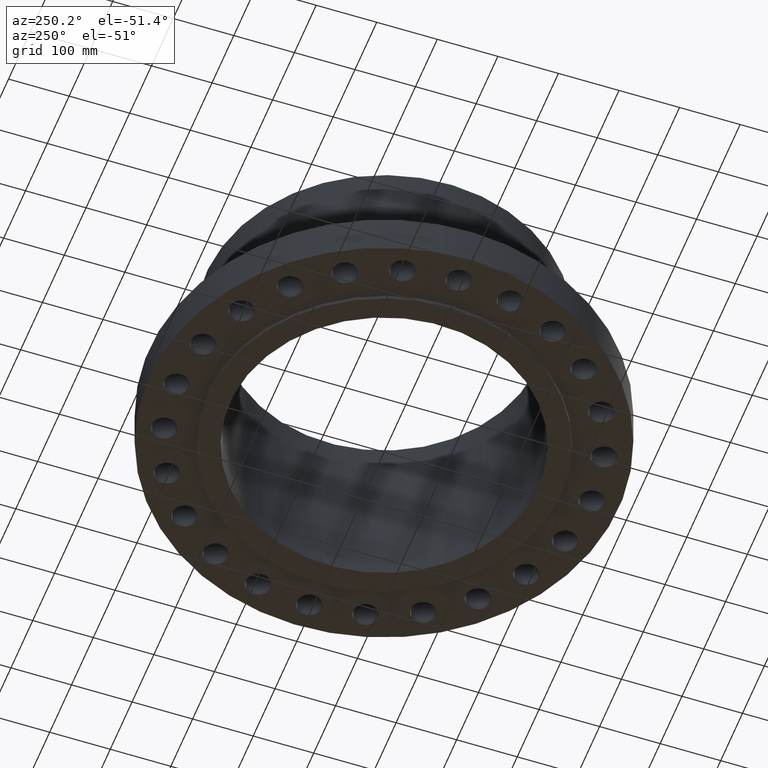
[diagram: clean part render]
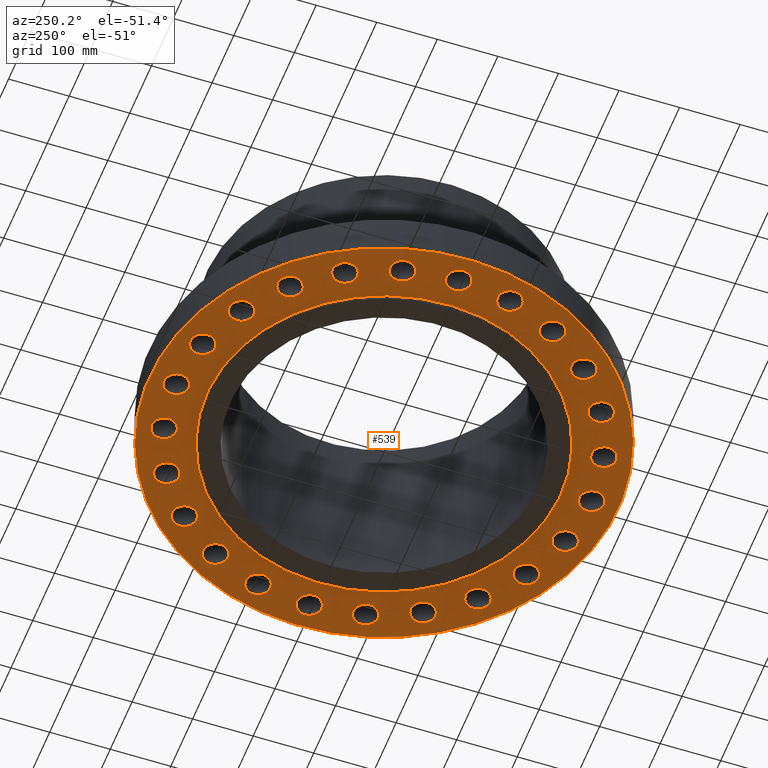
[diagram: same view with one face highlighted and labeled with its STEP entity id]
A machine part, auxiliary view. The second image highlights one B-rep face of the part: STEP entity #539.
In plain terms, the highlighted planar face has unit normal (0, 0, -1).
Its self-contained STEP definition (entity closure, byte-faithful):
#65=AXIS2_PLACEMENT_3D('Circle Axis2P3D',#63,#64,$) ;
#78=AXIS2_PLACEMENT_3D('Plane Axis2P3D',#75,#76,#77) ;
#82=AXIS2_PLACEMENT_3D('Circle Axis2P3D',#80,#81,$) ;
#91=AXIS2_PLACEMENT_3D('Circle Axis2P3D',#89,#90,$) ;
#100=AXIS2_PLACEMENT_3D('Circle Axis2P3D',#98,#99,$) ;
#109=AXIS2_PLACEMENT_3D('Circle Axis2P3D',#107,#108,$) ;
#118=AXIS2_PLACEMENT_3D('Circle Axis2P3D',#116,#117,$) ;
#127=AXIS2_PLACEMENT_3D('Circle Axis2P3D',#125,#126,$) ;
#136=AXIS2_PLACEMENT_3D('Circle Axis2P3D',#134,#135,$) ;
#145=AXIS2_PLACEMENT_3D('Circle Axis2P3D',#143,#144,$) ;
#154=AXIS2_PLACEMENT_3D('Circle Axis2P3D',#152,#153,$) ;
#163=AXIS2_PLACEMENT_3D('Circle Axis2P3D',#161,#162,$) ;
#172=AXIS2_PLACEMENT_3D('Circle Axis2P3D',#170,#171,$) ;
#181=AXIS2_PLACEMENT_3D('Circle Axis2P3D',#179,#180,$) ;
#190=AXIS2_PLACEMENT_3D('Circle Axis2P3D',#188,#189,$) ;
#199=AXIS2_PLACEMENT_3D('Circle Axis2P3D',#197,#198,$) ;
#208=AXIS2_PLACEMENT_3D('Circle Axis2P3D',#206,#207,$) ;
#217=AXIS2_PLACEMENT_3D('Circle Axis2P3D',#215,#216,$) ;
#226=AXIS2_PLACEMENT_3D('Circle Axis2P3D',#224,#225,$) ;
#235=AXIS2_PLACEMENT_3D('Circle Axis2P3D',#233,#234,$) ;
#244=AXIS2_PLACEMENT_3D('Circle Axis2P3D',#242,#243,$) ;
#253=AXIS2_PLACEMENT_3D('Circle Axis2P3D',#251,#252,$) ;
#262=AXIS2_PLACEMENT_3D('Circle Axis2P3D',#260,#261,$) ;
#271=AXIS2_PLACEMENT_3D('Circle Axis2P3D',#269,#270,$) ;
#280=AXIS2_PLACEMENT_3D('Circle Axis2P3D',#278,#279,$) ;
#289=AXIS2_PLACEMENT_3D('Circle Axis2P3D',#287,#288,$) ;
#298=AXIS2_PLACEMENT_3D('Circle Axis2P3D',#296,#297,$) ;
#307=AXIS2_PLACEMENT_3D('Circle Axis2P3D',#305,#306,$) ;
#316=AXIS2_PLACEMENT_3D('Circle Axis2P3D',#314,#315,$) ;
#325=AXIS2_PLACEMENT_3D('Circle Axis2P3D',#323,#324,$) ;
#334=AXIS2_PLACEMENT_3D('Circle Axis2P3D',#332,#333,$) ;
#343=AXIS2_PLACEMENT_3D('Circle Axis2P3D',#341,#342,$) ;
#352=AXIS2_PLACEMENT_3D('Circle Axis2P3D',#350,#351,$) ;
#361=AXIS2_PLACEMENT_3D('Circle Axis2P3D',#359,#360,$) ;
#370=AXIS2_PLACEMENT_3D('Circle Axis2P3D',#368,#369,$) ;
#379=AXIS2_PLACEMENT_3D('Circle Axis2P3D',#377,#378,$) ;
#388=AXIS2_PLACEMENT_3D('Circle Axis2P3D',#386,#387,$) ;
#397=AXIS2_PLACEMENT_3D('Circle Axis2P3D',#395,#396,$) ;
#406=AXIS2_PLACEMENT_3D('Circle Axis2P3D',#404,#405,$) ;
#415=AXIS2_PLACEMENT_3D('Circle Axis2P3D',#413,#414,$) ;
#424=AXIS2_PLACEMENT_3D('Circle Axis2P3D',#422,#423,$) ;
#433=AXIS2_PLACEMENT_3D('Circle Axis2P3D',#431,#432,$) ;
#442=AXIS2_PLACEMENT_3D('Circle Axis2P3D',#440,#441,$) ;
#451=AXIS2_PLACEMENT_3D('Circle Axis2P3D',#449,#450,$) ;
#460=AXIS2_PLACEMENT_3D('Circle Axis2P3D',#458,#459,$) ;
#469=AXIS2_PLACEMENT_3D('Circle Axis2P3D',#467,#468,$) ;
#478=AXIS2_PLACEMENT_3D('Circle Axis2P3D',#476,#477,$) ;
#487=AXIS2_PLACEMENT_3D('Circle Axis2P3D',#485,#486,$) ;
#496=AXIS2_PLACEMENT_3D('Circle Axis2P3D',#494,#495,$) ;
#505=AXIS2_PLACEMENT_3D('Circle Axis2P3D',#503,#504,$) ;
#514=AXIS2_PLACEMENT_3D('Circle Axis2P3D',#512,#513,$) ;
#523=AXIS2_PLACEMENT_3D('Circle Axis2P3D',#521,#522,$) ;
#532=AXIS2_PLACEMENT_3D('Circle Axis2P3D',#530,#531,$) ;
#46=CARTESIAN_POINT('Vertex',(12.7891581249,-0.388334686271,2.2401153548E-016)) ;
#60=CARTESIAN_POINT('Vertex',(14.2108418752,0.388334686271,2.2401153548E-016)) ;
#63=CARTESIAN_POINT('Axis2P3D Location',(13.5000000001,0.,0.)) ;
#75=CARTESIAN_POINT('Axis2P3D Location',(0.,11.5,0.)) ;
#80=CARTESIAN_POINT('Axis2P3D Location',(0.,0.,0.)) ;
#84=CARTESIAN_POINT('Vertex',(-7.31123946374,-13.3831340689,2.23792987641E-015)) ;
#86=CARTESIAN_POINT('Vertex',(7.31123946374,13.3831340689,2.23792987641E-015)) ;
#89=CARTESIAN_POINT('Axis2P3D Location',(0.,0.,0.)) ;
#98=CARTESIAN_POINT('Axis2P3D Location',(13.5000000001,0.,0.)) ;
#107=CARTESIAN_POINT('Axis2P3D Location',(0.,0.,0.)) ;
#111=CARTESIAN_POINT('Vertex',(5.51339369397,10.0921994618,0.)) ;
#113=CARTESIAN_POINT('Vertex',(-5.51339369397,-10.0921994618,0.)) ;
#116=CARTESIAN_POINT('Axis2P3D Location',(0.,0.,0.)) ;
#125=CARTESIAN_POINT('Axis2P3D Location',(13.039998655,-3.4940571089,0.)) ;
#129=CARTESIAN_POINT('Vertex',(13.8271275932,-3.30293402153,0.)) ;
#131=CARTESIAN_POINT('Vertex',(12.2528697167,-3.68518019627,0.)) ;
#134=CARTESIAN_POINT('Axis2P3D Location',(13.039998655,-3.4940571089,0.)) ;
#143=CARTESIAN_POINT('Axis2P3D Location',(11.6913429511,-6.75000000003,0.)) ;
#147=CARTESIAN_POINT('Vertex',(12.5011174162,-6.76911323411,0.)) ;
#149=CARTESIAN_POINT('Vertex',(10.8815684861,-6.73088676594,0.)) ;
#152=CARTESIAN_POINT('Axis2P3D Location',(11.6913429511,-6.75000000003,0.)) ;
#161=CARTESIAN_POINT('Axis2P3D Location',(9.54594154606,-9.54594154606,0.)) ;
#165=CARTESIAN_POINT('Vertex',(10.3231767463,-9.77398856628,0.)) ;
#167=CARTESIAN_POINT('Vertex',(8.76870634577,-9.31789452583,0.)) ;
#170=CARTESIAN_POINT('Axis2P3D Location',(9.54594154606,-9.54594154606,0.)) ;
#179=CARTESIAN_POINT('Axis2P3D Location',(6.75000000003,-11.6913429511,0.)) ;
#183=CARTESIAN_POINT('Vertex',(7.44172864108,-12.1127827299,0.)) ;
#185=CARTESIAN_POINT('Vertex',(6.05827135898,-11.2699031723,0.)) ;
#188=CARTESIAN_POINT('Axis2P3D Location',(6.75000000003,-11.6913429511,0.)) ;
#197=CARTESIAN_POINT('Axis2P3D Location',(3.4940571089,-13.039998655,0.)) ;
#201=CARTESIAN_POINT('Vertex',(4.05313902695,-13.6261107679,0.)) ;
#203=CARTESIAN_POINT('Vertex',(2.93497519084,-12.453886542,0.)) ;
#206=CARTESIAN_POINT('Axis2P3D Location',(3.4940571089,-13.039998655,0.)) ;
#215=CARTESIAN_POINT('Axis2P3D Location',(-7.69288395016E-016,-13.5000000001,0.)) ;
#219=CARTESIAN_POINT('Vertex',(0.388334686271,-14.2108418752,0.)) ;
#221=CARTESIAN_POINT('Vertex',(-0.388334686271,-12.7891581249,0.)) ;
#224=CARTESIAN_POINT('Axis2P3D Location',(-2.65754172824E-015,-13.5000000001,0.)) ;
#233=CARTESIAN_POINT('Axis2P3D Location',(-3.4940571089,-13.039998655,0.)) ;
#237=CARTESIAN_POINT('Vertex',(-3.30293402153,-13.8271275932,0.)) ;
#239=CARTESIAN_POINT('Vertex',(-3.68518019627,-12.2528697167,0.)) ;
#242=CARTESIAN_POINT('Axis2P3D Location',(-3.4940571089,-13.039998655,0.)) ;
#251=CARTESIAN_POINT('Axis2P3D Location',(-6.75000000003,-11.6913429511,0.)) ;
#255=CARTESIAN_POINT('Vertex',(-6.76911323411,-12.5011174162,0.)) ;
#257=CARTESIAN_POINT('Vertex',(-6.73088676594,-10.8815684861,0.)) ;
#260=CARTESIAN_POINT('Axis2P3D Location',(-6.75000000003,-11.6913429511,0.)) ;
#269=CARTESIAN_POINT('Axis2P3D Location',(-9.54594154606,-9.54594154606,0.)) ;
#273=CARTESIAN_POINT('Vertex',(-9.77398856628,-10.3231767463,0.)) ;
#275=CARTESIAN_POINT('Vertex',(-9.31789452583,-8.76870634577,0.)) ;
#278=CARTESIAN_POINT('Axis2P3D Location',(-9.54594154606,-9.54594154606,0.)) ;
#287=CARTESIAN_POINT('Axis2P3D Location',(-11.6913429511,-6.75000000003,0.)) ;
#291=CARTESIAN_POINT('Vertex',(-12.1127827299,-7.44172864108,0.)) ;
#293=CARTESIAN_POINT('Vertex',(-11.2699031723,-6.05827135898,0.)) ;
#296=CARTESIAN_POINT('Axis2P3D Location',(-11.6913429511,-6.75000000003,0.)) ;
#305=CARTESIAN_POINT('Axis2P3D Location',(-13.039998655,-3.4940571089,0.)) ;
#309=CARTESIAN_POINT('Vertex',(-13.6261107679,-4.05313902695,0.)) ;
#311=CARTESIAN_POINT('Vertex',(-12.453886542,-2.93497519084,0.)) ;
#314=CARTESIAN_POINT('Axis2P3D Location',(-13.039998655,-3.4940571089,0.)) ;
#323=CARTESIAN_POINT('Axis2P3D Location',(-13.5000000001,0.,0.)) ;
#327=CARTESIAN_POINT('Vertex',(-14.2108418752,-0.388334686271,0.)) ;
#329=CARTESIAN_POINT('Vertex',(-12.7891581249,0.388334686271,0.)) ;
#332=CARTESIAN_POINT('Axis2P3D Location',(-13.5000000001,0.,0.)) ;
#341=CARTESIAN_POINT('Axis2P3D Location',(-13.039998655,3.4940571089,0.)) ;
#345=CARTESIAN_POINT('Vertex',(-13.8271275932,3.30293402153,0.)) ;
#347=CARTESIAN_POINT('Vertex',(-12.2528697167,3.68518019627,0.)) ;
#350=CARTESIAN_POINT('Axis2P3D Location',(-13.039998655,3.4940571089,0.)) ;
#359=CARTESIAN_POINT('Axis2P3D Location',(-11.6913429511,6.75000000003,0.)) ;
#363=CARTESIAN_POINT('Vertex',(-12.5011174162,6.76911323411,0.)) ;
#365=CARTESIAN_POINT('Vertex',(-10.8815684861,6.73088676594,0.)) ;
#368=CARTESIAN_POINT('Axis2P3D Location',(-11.6913429511,6.75000000003,0.)) ;
#377=CARTESIAN_POINT('Axis2P3D Location',(-9.54594154606,9.54594154606,0.)) ;
#381=CARTESIAN_POINT('Vertex',(-10.3231767463,9.77398856628,0.)) ;
#383=CARTESIAN_POINT('Vertex',(-8.76870634577,9.31789452583,0.)) ;
#386=CARTESIAN_POINT('Axis2P3D Location',(-9.54594154606,9.54594154606,0.)) ;
#395=CARTESIAN_POINT('Axis2P3D Location',(-6.75000000003,11.6913429511,0.)) ;
#399=CARTESIAN_POINT('Vertex',(-7.44172864108,12.1127827299,0.)) ;
#401=CARTESIAN_POINT('Vertex',(-6.05827135898,11.2699031723,0.)) ;
#404=CARTESIAN_POINT('Axis2P3D Location',(-6.75000000003,11.6913429511,0.)) ;
#413=CARTESIAN_POINT('Axis2P3D Location',(-3.4940571089,13.039998655,0.)) ;
#417=CARTESIAN_POINT('Vertex',(-4.05313902695,13.6261107679,0.)) ;
#419=CARTESIAN_POINT('Vertex',(-2.93497519084,12.453886542,0.)) ;
#422=CARTESIAN_POINT('Axis2P3D Location',(-3.4940571089,13.039998655,0.)) ;
#431=CARTESIAN_POINT('Axis2P3D Location',(-3.1470888887E-015,13.5000000001,0.)) ;
#435=CARTESIAN_POINT('Vertex',(-0.388334686271,14.2108418752,0.)) ;
#437=CARTESIAN_POINT('Vertex',(0.388334686271,12.7891581249,0.)) ;
#440=CARTESIAN_POINT('Axis2P3D Location',(-1.88825333322E-015,13.5000000001,0.)) ;
#449=CARTESIAN_POINT('Axis2P3D Location',(3.4940571089,13.039998655,0.)) ;
#453=CARTESIAN_POINT('Vertex',(3.30293402153,13.8271275932,0.)) ;
#455=CARTESIAN_POINT('Vertex',(3.68518019627,12.2528697167,0.)) ;
#458=CARTESIAN_POINT('Axis2P3D Location',(3.4940571089,13.039998655,0.)) ;
#467=CARTESIAN_POINT('Axis2P3D Location',(6.75000000003,11.6913429511,0.)) ;
#471=CARTESIAN_POINT('Vertex',(6.76911323411,12.5011174162,0.)) ;
#473=CARTESIAN_POINT('Vertex',(6.73088676594,10.8815684861,0.)) ;
#476=CARTESIAN_POINT('Axis2P3D Location',(6.75000000003,11.6913429511,0.)) ;
#485=CARTESIAN_POINT('Axis2P3D Location',(9.54594154606,9.54594154606,0.)) ;
#489=CARTESIAN_POINT('Vertex',(9.77398856628,10.3231767463,0.)) ;
#491=CARTESIAN_POINT('Vertex',(9.31789452583,8.76870634577,0.)) ;
#494=CARTESIAN_POINT('Axis2P3D Location',(9.54594154606,9.54594154606,0.)) ;
#503=CARTESIAN_POINT('Axis2P3D Location',(11.6913429511,6.75000000003,0.)) ;
#507=CARTESIAN_POINT('Vertex',(12.1127827299,7.44172864108,0.)) ;
#509=CARTESIAN_POINT('Vertex',(11.2699031723,6.05827135898,0.)) ;
#512=CARTESIAN_POINT('Axis2P3D Location',(11.6913429511,6.75000000003,0.)) ;
#521=CARTESIAN_POINT('Axis2P3D Location',(13.039998655,3.4940571089,0.)) ;
#525=CARTESIAN_POINT('Vertex',(13.6261107679,4.05313902695,0.)) ;
#527=CARTESIAN_POINT('Vertex',(12.453886542,2.93497519084,0.)) ;
#530=CARTESIAN_POINT('Axis2P3D Location',(13.039998655,3.4940571089,0.)) ;
#64=DIRECTION('Axis2P3D Direction',(0.,-0.,0.0393700787402)) ;
#76=DIRECTION('Axis2P3D Direction',(0.,0.,-0.0393700787402)) ;
#77=DIRECTION('Axis2P3D XDirection',(0.0393700787402,0.,0.)) ;
#81=DIRECTION('Axis2P3D Direction',(0.,0.,-0.0393700787402)) ;
#90=DIRECTION('Axis2P3D Direction',(0.,0.,-0.0393700787402)) ;
#99=DIRECTION('Axis2P3D Direction',(0.,0.,-0.0393700787402)) ;
#108=DIRECTION('Axis2P3D Direction',(0.,0.,-0.0393700787402)) ;
#117=DIRECTION('Axis2P3D Direction',(0.,0.,-0.0393700787402)) ;
#126=DIRECTION('Axis2P3D Direction',(0.,0.,-0.0393700787402)) ;
#135=DIRECTION('Axis2P3D Direction',(0.,0.,-0.0393700787402)) ;
#144=DIRECTION('Axis2P3D Direction',(0.,0.,-0.0393700787402)) ;
#153=DIRECTION('Axis2P3D Direction',(0.,0.,-0.0393700787402)) ;
#162=DIRECTION('Axis2P3D Direction',(0.,0.,-0.0393700787402)) ;
#171=DIRECTION('Axis2P3D Direction',(0.,0.,-0.0393700787402)) ;
#180=DIRECTION('Axis2P3D Direction',(0.,0.,-0.0393700787402)) ;
#189=DIRECTION('Axis2P3D Direction',(0.,0.,-0.0393700787402)) ;
#198=DIRECTION('Axis2P3D Direction',(0.,0.,-0.0393700787402)) ;
#207=DIRECTION('Axis2P3D Direction',(0.,0.,-0.0393700787402)) ;
#216=DIRECTION('Axis2P3D Direction',(0.,0.,-0.0393700787402)) ;
#225=DIRECTION('Axis2P3D Direction',(0.,0.,-0.0393700787402)) ;
#234=DIRECTION('Axis2P3D Direction',(0.,0.,-0.0393700787402)) ;
#243=DIRECTION('Axis2P3D Direction',(0.,0.,-0.0393700787402)) ;
#252=DIRECTION('Axis2P3D Direction',(0.,0.,-0.0393700787402)) ;
#261=DIRECTION('Axis2P3D Direction',(0.,0.,-0.0393700787402)) ;
#270=DIRECTION('Axis2P3D Direction',(0.,0.,-0.0393700787402)) ;
#279=DIRECTION('Axis2P3D Direction',(0.,0.,-0.0393700787402)) ;
#288=DIRECTION('Axis2P3D Direction',(0.,0.,-0.0393700787402)) ;
#297=DIRECTION('Axis2P3D Direction',(0.,0.,-0.0393700787402)) ;
#306=DIRECTION('Axis2P3D Direction',(0.,0.,-0.0393700787402)) ;
#315=DIRECTION('Axis2P3D Direction',(0.,0.,-0.0393700787402)) ;
#324=DIRECTION('Axis2P3D Direction',(0.,0.,-0.0393700787402)) ;
#333=DIRECTION('Axis2P3D Direction',(0.,0.,-0.0393700787402)) ;
#342=DIRECTION('Axis2P3D Direction',(0.,0.,-0.0393700787402)) ;
#351=DIRECTION('Axis2P3D Direction',(0.,0.,-0.0393700787402)) ;
#360=DIRECTION('Axis2P3D Direction',(0.,0.,-0.0393700787402)) ;
#369=DIRECTION('Axis2P3D Direction',(0.,0.,-0.0393700787402)) ;
#378=DIRECTION('Axis2P3D Direction',(0.,0.,-0.0393700787402)) ;
#387=DIRECTION('Axis2P3D Direction',(0.,0.,-0.0393700787402)) ;
#396=DIRECTION('Axis2P3D Direction',(0.,0.,-0.0393700787402)) ;
#405=DIRECTION('Axis2P3D Direction',(0.,0.,-0.0393700787402)) ;
#414=DIRECTION('Axis2P3D Direction',(0.,0.,-0.0393700787402)) ;
#423=DIRECTION('Axis2P3D Direction',(0.,0.,-0.0393700787402)) ;
#432=DIRECTION('Axis2P3D Direction',(0.,0.,-0.0393700787402)) ;
#441=DIRECTION('Axis2P3D Direction',(0.,0.,-0.0393700787402)) ;
#450=DIRECTION('Axis2P3D Direction',(0.,0.,-0.0393700787402)) ;
#459=DIRECTION('Axis2P3D Direction',(0.,0.,-0.0393700787402)) ;
#468=DIRECTION('Axis2P3D Direction',(0.,0.,-0.0393700787402)) ;
#477=DIRECTION('Axis2P3D Direction',(0.,0.,-0.0393700787402)) ;
#486=DIRECTION('Axis2P3D Direction',(0.,0.,-0.0393700787402)) ;
#495=DIRECTION('Axis2P3D Direction',(0.,0.,-0.0393700787402)) ;
#504=DIRECTION('Axis2P3D Direction',(0.,0.,-0.0393700787402)) ;
#513=DIRECTION('Axis2P3D Direction',(0.,0.,-0.0393700787402)) ;
#522=DIRECTION('Axis2P3D Direction',(0.,0.,-0.0393700787402)) ;
#531=DIRECTION('Axis2P3D Direction',(0.,0.,-0.0393700787402)) ;
#95=ORIENTED_EDGE('',*,*,#88,.T.) ;
#96=ORIENTED_EDGE('',*,*,#93,.T.) ;
#104=ORIENTED_EDGE('',*,*,#102,.F.) ;
#105=ORIENTED_EDGE('',*,*,#67,.F.) ;
#122=ORIENTED_EDGE('',*,*,#115,.F.) ;
#123=ORIENTED_EDGE('',*,*,#120,.F.) ;
#140=ORIENTED_EDGE('',*,*,#133,.F.) ;
#141=ORIENTED_EDGE('',*,*,#138,.F.) ;
#158=ORIENTED_EDGE('',*,*,#151,.F.) ;
#159=ORIENTED_EDGE('',*,*,#156,.F.) ;
#176=ORIENTED_EDGE('',*,*,#169,.F.) ;
#177=ORIENTED_EDGE('',*,*,#174,.F.) ;
#194=ORIENTED_EDGE('',*,*,#187,.F.) ;
#195=ORIENTED_EDGE('',*,*,#192,.F.) ;
#212=ORIENTED_EDGE('',*,*,#205,.F.) ;
#213=ORIENTED_EDGE('',*,*,#210,.F.) ;
#230=ORIENTED_EDGE('',*,*,#223,.F.) ;
#231=ORIENTED_EDGE('',*,*,#228,.F.) ;
#248=ORIENTED_EDGE('',*,*,#241,.F.) ;
#249=ORIENTED_EDGE('',*,*,#246,.F.) ;
#266=ORIENTED_EDGE('',*,*,#259,.F.) ;
#267=ORIENTED_EDGE('',*,*,#264,.F.) ;
#284=ORIENTED_EDGE('',*,*,#277,.F.) ;
#285=ORIENTED_EDGE('',*,*,#282,.F.) ;
#302=ORIENTED_EDGE('',*,*,#295,.F.) ;
#303=ORIENTED_EDGE('',*,*,#300,.F.) ;
#320=ORIENTED_EDGE('',*,*,#313,.F.) ;
#321=ORIENTED_EDGE('',*,*,#318,.F.) ;
#338=ORIENTED_EDGE('',*,*,#331,.F.) ;
#339=ORIENTED_EDGE('',*,*,#336,.F.) ;
#356=ORIENTED_EDGE('',*,*,#349,.F.) ;
#357=ORIENTED_EDGE('',*,*,#354,.F.) ;
#374=ORIENTED_EDGE('',*,*,#367,.F.) ;
#375=ORIENTED_EDGE('',*,*,#372,.F.) ;
#392=ORIENTED_EDGE('',*,*,#385,.F.) ;
#393=ORIENTED_EDGE('',*,*,#390,.F.) ;
#410=ORIENTED_EDGE('',*,*,#403,.F.) ;
#411=ORIENTED_EDGE('',*,*,#408,.F.) ;
#428=ORIENTED_EDGE('',*,*,#421,.F.) ;
#429=ORIENTED_EDGE('',*,*,#426,.F.) ;
#446=ORIENTED_EDGE('',*,*,#439,.F.) ;
#447=ORIENTED_EDGE('',*,*,#444,.F.) ;
#464=ORIENTED_EDGE('',*,*,#457,.F.) ;
#465=ORIENTED_EDGE('',*,*,#462,.F.) ;
#482=ORIENTED_EDGE('',*,*,#475,.F.) ;
#483=ORIENTED_EDGE('',*,*,#480,.F.) ;
#500=ORIENTED_EDGE('',*,*,#493,.F.) ;
#501=ORIENTED_EDGE('',*,*,#498,.F.) ;
#518=ORIENTED_EDGE('',*,*,#511,.F.) ;
#519=ORIENTED_EDGE('',*,*,#516,.F.) ;
#536=ORIENTED_EDGE('',*,*,#529,.F.) ;
#537=ORIENTED_EDGE('',*,*,#534,.F.) ;
#106=FACE_BOUND('',#103,.T.) ;
#124=FACE_BOUND('',#121,.T.) ;
#142=FACE_BOUND('',#139,.T.) ;
#160=FACE_BOUND('',#157,.T.) ;
#178=FACE_BOUND('',#175,.T.) ;
#196=FACE_BOUND('',#193,.T.) ;
#214=FACE_BOUND('',#211,.T.) ;
#232=FACE_BOUND('',#229,.T.) ;
#250=FACE_BOUND('',#247,.T.) ;
#268=FACE_BOUND('',#265,.T.) ;
#286=FACE_BOUND('',#283,.T.) ;
#304=FACE_BOUND('',#301,.T.) ;
#322=FACE_BOUND('',#319,.T.) ;
#340=FACE_BOUND('',#337,.T.) ;
#358=FACE_BOUND('',#355,.T.) ;
#376=FACE_BOUND('',#373,.T.) ;
#394=FACE_BOUND('',#391,.T.) ;
#412=FACE_BOUND('',#409,.T.) ;
#430=FACE_BOUND('',#427,.T.) ;
#448=FACE_BOUND('',#445,.T.) ;
#466=FACE_BOUND('',#463,.T.) ;
#484=FACE_BOUND('',#481,.T.) ;
#502=FACE_BOUND('',#499,.T.) ;
#520=FACE_BOUND('',#517,.T.) ;
#538=FACE_BOUND('',#535,.T.) ;
#539=ADVANCED_FACE('PartBody',(#97,#106,#124,#142,#160,#178,#196,#214,#232,#250,#268,#286,#304,#322,#340,#358,#376,#394,#412,#430,#448,#466,#484,#502,#520,#538),#79,.T.) ;
#66=CIRCLE('generated circle',#65,0.810000000003) ;
#83=CIRCLE('generated circle',#82,15.2500000001) ;
#92=CIRCLE('generated circle',#91,15.2500000001) ;
#101=CIRCLE('generated circle',#100,0.810000000003) ;
#110=CIRCLE('generated circle',#109,11.5) ;
#119=CIRCLE('generated circle',#118,11.5) ;
#128=CIRCLE('generated circle',#127,0.810000000003) ;
#137=CIRCLE('generated circle',#136,0.810000000003) ;
#146=CIRCLE('generated circle',#145,0.810000000003) ;
#155=CIRCLE('generated circle',#154,0.810000000003) ;
#164=CIRCLE('generated circle',#163,0.810000000003) ;
#173=CIRCLE('generated circle',#172,0.810000000003) ;
#182=CIRCLE('generated circle',#181,0.810000000003) ;
#191=CIRCLE('generated circle',#190,0.810000000003) ;
#200=CIRCLE('generated circle',#199,0.810000000003) ;
#209=CIRCLE('generated circle',#208,0.810000000003) ;
#218=CIRCLE('generated circle',#217,0.810000000003) ;
#227=CIRCLE('generated circle',#226,0.810000000003) ;
#236=CIRCLE('generated circle',#235,0.810000000003) ;
#245=CIRCLE('generated circle',#244,0.810000000003) ;
#254=CIRCLE('generated circle',#253,0.810000000003) ;
#263=CIRCLE('generated circle',#262,0.810000000003) ;
#272=CIRCLE('generated circle',#271,0.810000000003) ;
#281=CIRCLE('generated circle',#280,0.810000000003) ;
#290=CIRCLE('generated circle',#289,0.810000000003) ;
#299=CIRCLE('generated circle',#298,0.810000000003) ;
#308=CIRCLE('generated circle',#307,0.810000000003) ;
#317=CIRCLE('generated circle',#316,0.810000000003) ;
#326=CIRCLE('generated circle',#325,0.810000000003) ;
#335=CIRCLE('generated circle',#334,0.810000000003) ;
#344=CIRCLE('generated circle',#343,0.810000000003) ;
#353=CIRCLE('generated circle',#352,0.810000000003) ;
#362=CIRCLE('generated circle',#361,0.810000000003) ;
#371=CIRCLE('generated circle',#370,0.810000000003) ;
#380=CIRCLE('generated circle',#379,0.810000000003) ;
#389=CIRCLE('generated circle',#388,0.810000000003) ;
#398=CIRCLE('generated circle',#397,0.810000000003) ;
#407=CIRCLE('generated circle',#406,0.810000000003) ;
#416=CIRCLE('generated circle',#415,0.810000000003) ;
#425=CIRCLE('generated circle',#424,0.810000000003) ;
#434=CIRCLE('generated circle',#433,0.810000000003) ;
#443=CIRCLE('generated circle',#442,0.810000000003) ;
#452=CIRCLE('generated circle',#451,0.810000000003) ;
#461=CIRCLE('generated circle',#460,0.810000000003) ;
#470=CIRCLE('generated circle',#469,0.810000000003) ;
#479=CIRCLE('generated circle',#478,0.810000000003) ;
#488=CIRCLE('generated circle',#487,0.810000000003) ;
#497=CIRCLE('generated circle',#496,0.810000000003) ;
#506=CIRCLE('generated circle',#505,0.810000000003) ;
#515=CIRCLE('generated circle',#514,0.810000000003) ;
#524=CIRCLE('generated circle',#523,0.810000000003) ;
#533=CIRCLE('generated circle',#532,0.810000000003) ;
#67=EDGE_CURVE('',#61,#47,#66,.F.) ;
#88=EDGE_CURVE('',#85,#87,#83,.T.) ;
#93=EDGE_CURVE('',#87,#85,#92,.T.) ;
#102=EDGE_CURVE('',#47,#61,#101,.T.) ;
#115=EDGE_CURVE('',#112,#114,#110,.T.) ;
#120=EDGE_CURVE('',#114,#112,#119,.T.) ;
#133=EDGE_CURVE('',#130,#132,#128,.T.) ;
#138=EDGE_CURVE('',#132,#130,#137,.T.) ;
#151=EDGE_CURVE('',#148,#150,#146,.T.) ;
#156=EDGE_CURVE('',#150,#148,#155,.T.) ;
#169=EDGE_CURVE('',#166,#168,#164,.T.) ;
#174=EDGE_CURVE('',#168,#166,#173,.T.) ;
#187=EDGE_CURVE('',#184,#186,#182,.T.) ;
#192=EDGE_CURVE('',#186,#184,#191,.T.) ;
#205=EDGE_CURVE('',#202,#204,#200,.T.) ;
#210=EDGE_CURVE('',#204,#202,#209,.T.) ;
#223=EDGE_CURVE('',#220,#222,#218,.T.) ;
#228=EDGE_CURVE('',#222,#220,#227,.T.) ;
#241=EDGE_CURVE('',#238,#240,#236,.T.) ;
#246=EDGE_CURVE('',#240,#238,#245,.T.) ;
#259=EDGE_CURVE('',#256,#258,#254,.T.) ;
#264=EDGE_CURVE('',#258,#256,#263,.T.) ;
#277=EDGE_CURVE('',#274,#276,#272,.T.) ;
#282=EDGE_CURVE('',#276,#274,#281,.T.) ;
#295=EDGE_CURVE('',#292,#294,#290,.T.) ;
#300=EDGE_CURVE('',#294,#292,#299,.T.) ;
#313=EDGE_CURVE('',#310,#312,#308,.T.) ;
#318=EDGE_CURVE('',#312,#310,#317,.T.) ;
#331=EDGE_CURVE('',#328,#330,#326,.T.) ;
#336=EDGE_CURVE('',#330,#328,#335,.T.) ;
#349=EDGE_CURVE('',#346,#348,#344,.T.) ;
#354=EDGE_CURVE('',#348,#346,#353,.T.) ;
#367=EDGE_CURVE('',#364,#366,#362,.T.) ;
#372=EDGE_CURVE('',#366,#364,#371,.T.) ;
#385=EDGE_CURVE('',#382,#384,#380,.T.) ;
#390=EDGE_CURVE('',#384,#382,#389,.T.) ;
#403=EDGE_CURVE('',#400,#402,#398,.T.) ;
#408=EDGE_CURVE('',#402,#400,#407,.T.) ;
#421=EDGE_CURVE('',#418,#420,#416,.T.) ;
#426=EDGE_CURVE('',#420,#418,#425,.T.) ;
#439=EDGE_CURVE('',#436,#438,#434,.T.) ;
#444=EDGE_CURVE('',#438,#436,#443,.T.) ;
#457=EDGE_CURVE('',#454,#456,#452,.T.) ;
#462=EDGE_CURVE('',#456,#454,#461,.T.) ;
#475=EDGE_CURVE('',#472,#474,#470,.T.) ;
#480=EDGE_CURVE('',#474,#472,#479,.T.) ;
#493=EDGE_CURVE('',#490,#492,#488,.T.) ;
#498=EDGE_CURVE('',#492,#490,#497,.T.) ;
#511=EDGE_CURVE('',#508,#510,#506,.T.) ;
#516=EDGE_CURVE('',#510,#508,#515,.T.) ;
#529=EDGE_CURVE('',#526,#528,#524,.T.) ;
#534=EDGE_CURVE('',#528,#526,#533,.T.) ;
#94=EDGE_LOOP('',(#95,#96)) ;
#103=EDGE_LOOP('',(#104,#105)) ;
#121=EDGE_LOOP('',(#122,#123)) ;
#139=EDGE_LOOP('',(#140,#141)) ;
#157=EDGE_LOOP('',(#158,#159)) ;
#175=EDGE_LOOP('',(#176,#177)) ;
#193=EDGE_LOOP('',(#194,#195)) ;
#211=EDGE_LOOP('',(#212,#213)) ;
#229=EDGE_LOOP('',(#230,#231)) ;
#247=EDGE_LOOP('',(#248,#249)) ;
#265=EDGE_LOOP('',(#266,#267)) ;
#283=EDGE_LOOP('',(#284,#285)) ;
#301=EDGE_LOOP('',(#302,#303)) ;
#319=EDGE_LOOP('',(#320,#321)) ;
#337=EDGE_LOOP('',(#338,#339)) ;
#355=EDGE_LOOP('',(#356,#357)) ;
#373=EDGE_LOOP('',(#374,#375)) ;
#391=EDGE_LOOP('',(#392,#393)) ;
#409=EDGE_LOOP('',(#410,#411)) ;
#427=EDGE_LOOP('',(#428,#429)) ;
#445=EDGE_LOOP('',(#446,#447)) ;
#463=EDGE_LOOP('',(#464,#465)) ;
#481=EDGE_LOOP('',(#482,#483)) ;
#499=EDGE_LOOP('',(#500,#501)) ;
#517=EDGE_LOOP('',(#518,#519)) ;
#535=EDGE_LOOP('',(#536,#537)) ;
#97=FACE_OUTER_BOUND('',#94,.T.) ;
#79=PLANE('',#78) ;
#47=VERTEX_POINT('',#46) ;
#61=VERTEX_POINT('',#60) ;
#85=VERTEX_POINT('',#84) ;
#87=VERTEX_POINT('',#86) ;
#112=VERTEX_POINT('',#111) ;
#114=VERTEX_POINT('',#113) ;
#130=VERTEX_POINT('',#129) ;
#132=VERTEX_POINT('',#131) ;
#148=VERTEX_POINT('',#147) ;
#150=VERTEX_POINT('',#149) ;
#166=VERTEX_POINT('',#165) ;
#168=VERTEX_POINT('',#167) ;
#184=VERTEX_POINT('',#183) ;
#186=VERTEX_POINT('',#185) ;
#202=VERTEX_POINT('',#201) ;
#204=VERTEX_POINT('',#203) ;
#220=VERTEX_POINT('',#219) ;
#222=VERTEX_POINT('',#221) ;
#238=VERTEX_POINT('',#237) ;
#240=VERTEX_POINT('',#239) ;
#256=VERTEX_POINT('',#255) ;
#258=VERTEX_POINT('',#257) ;
#274=VERTEX_POINT('',#273) ;
#276=VERTEX_POINT('',#275) ;
#292=VERTEX_POINT('',#291) ;
#294=VERTEX_POINT('',#293) ;
#310=VERTEX_POINT('',#309) ;
#312=VERTEX_POINT('',#311) ;
#328=VERTEX_POINT('',#327) ;
#330=VERTEX_POINT('',#329) ;
#346=VERTEX_POINT('',#345) ;
#348=VERTEX_POINT('',#347) ;
#364=VERTEX_POINT('',#363) ;
#366=VERTEX_POINT('',#365) ;
#382=VERTEX_POINT('',#381) ;
#384=VERTEX_POINT('',#383) ;
#400=VERTEX_POINT('',#399) ;
#402=VERTEX_POINT('',#401) ;
#418=VERTEX_POINT('',#417) ;
#420=VERTEX_POINT('',#419) ;
#436=VERTEX_POINT('',#435) ;
#438=VERTEX_POINT('',#437) ;
#454=VERTEX_POINT('',#453) ;
#456=VERTEX_POINT('',#455) ;
#472=VERTEX_POINT('',#471) ;
#474=VERTEX_POINT('',#473) ;
#490=VERTEX_POINT('',#489) ;
#492=VERTEX_POINT('',#491) ;
#508=VERTEX_POINT('',#507) ;
#510=VERTEX_POINT('',#509) ;
#526=VERTEX_POINT('',#525) ;
#528=VERTEX_POINT('',#527) ;